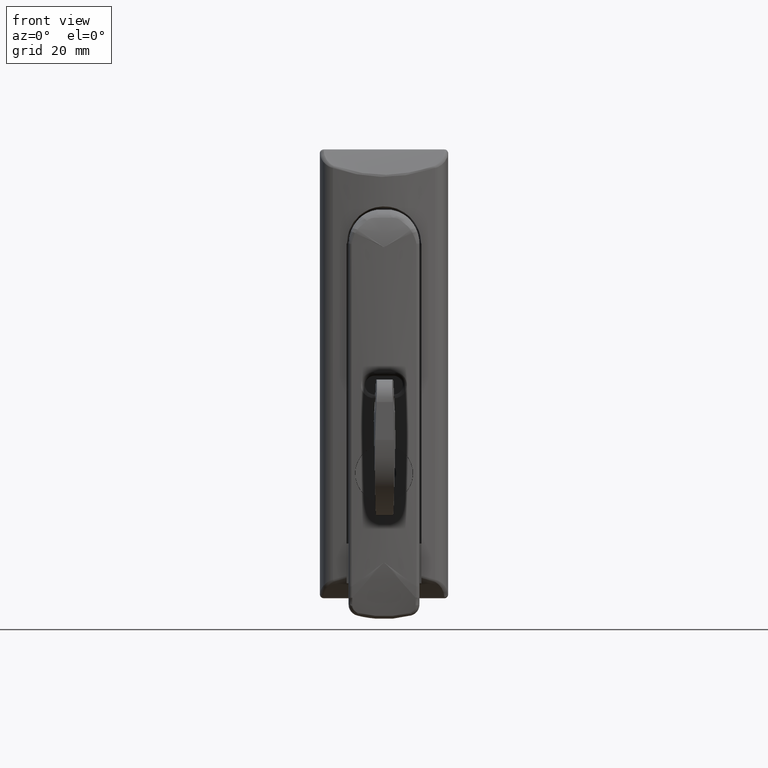
[diagram: clean part render]
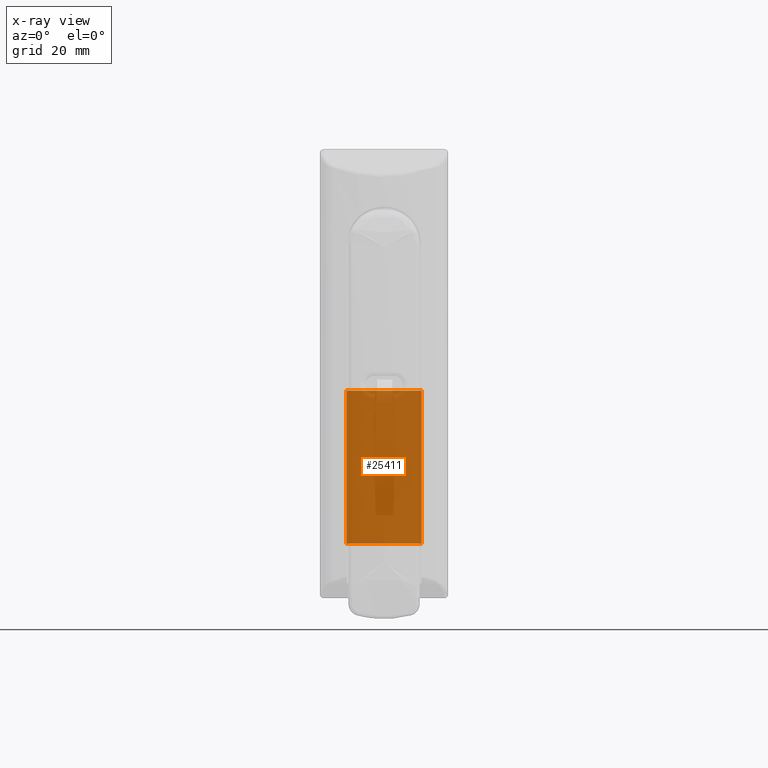
[diagram: x-ray — body ghosted, one internal face saturated and labeled with its STEP entity id]
A machine part, front view, then the same camera in x-ray: the body is ghosted and one INTERNAL B-rep face — a face not visible from any outside direction — is saturated and labeled: STEP entity #25411.
In plain terms, the highlighted face is a freeform B-spline surface patch.
Its self-contained STEP definition (entity closure, byte-faithful):
#25241=CARTESIAN_POINT('',(-9.900000000036210,28.999999999966050,-79.499999999994500));
#25242=VERTEX_POINT('',#25241);
#25248=CARTESIAN_POINT('',(-9.900000000036210,28.999999999966050,-38.999999999994500));
#25249=VERTEX_POINT('',#25248);
#25250=CARTESIAN_POINT('',(-9.900000000036210,28.999999999966050,-38.999999999994500));
#25251=CARTESIAN_POINT('',(-9.900000000036210,28.999999999966050,-79.499999999994500));
#25252=QUASI_UNIFORM_CURVE('',1,(#25250,#25251),.UNSPECIFIED.,.F.,.U.);
#25253=EDGE_CURVE('',#25249,#25242,#25252,.T.);
#25298=CARTESIAN_POINT('',(9.899999999963722,28.999999999966050,-38.999999999994500));
#25299=VERTEX_POINT('',#25298);
#25305=CARTESIAN_POINT('',(9.899999999963722,28.999999999966050,-79.499999999994500));
#25306=VERTEX_POINT('',#25305);
#25307=CARTESIAN_POINT('',(9.899999999963722,28.999999999966050,-38.999999999994500));
#25308=CARTESIAN_POINT('',(9.899999999963722,28.999999999966050,-79.499999999994500));
#25309=QUASI_UNIFORM_CURVE('',1,(#25307,#25308),.UNSPECIFIED.,.F.,.U.);
#25310=EDGE_CURVE('',#25299,#25306,#25309,.T.);
#25388=CARTESIAN_POINT('',(9.899999999963722,28.999999999966050,-79.499999999994500));
#25389=CARTESIAN_POINT('',(-9.900000000036210,28.999999999966050,-79.499999999994500));
#25390=QUASI_UNIFORM_CURVE('',1,(#25388,#25389),.UNSPECIFIED.,.F.,.U.);
#25391=EDGE_CURVE('',#25306,#25242,#25390,.T.);
#25396=CARTESIAN_POINT('',(10.889009961587480,28.999999999966050,-36.977025078491359));
#25397=CARTESIAN_POINT('',(10.889009961587480,28.999999999966050,-81.522976007792323));
#25398=CARTESIAN_POINT('',(-10.889010492737350,28.999999999966050,-36.977025078491359));
#25399=CARTESIAN_POINT('',(-10.889010492737350,28.999999999966050,-81.522976007792323));
#25400=B_SPLINE_SURFACE_WITH_KNOTS('',1,1,((#25396,#25398),(#25397,#25399)),.UNSPECIFIED.,.F.,.F.,.U.,(2,2),(2,2),(0.0,44.545950929300972),(0.0,21.778020454324832),.UNSPECIFIED.);
#25401=ORIENTED_EDGE('',*,*,#25253,.T.);
#25402=ORIENTED_EDGE('',*,*,#25391,.F.);
#25403=ORIENTED_EDGE('',*,*,#25310,.F.);
#25404=CARTESIAN_POINT('',(9.899999999963722,28.999999999966050,-38.999999999994500));
#25405=CARTESIAN_POINT('',(-9.900000000036210,28.999999999966050,-38.999999999994500));
#25406=QUASI_UNIFORM_CURVE('',1,(#25404,#25405),.UNSPECIFIED.,.F.,.U.);
#25407=EDGE_CURVE('',#25299,#25249,#25406,.T.);
#25408=ORIENTED_EDGE('',*,*,#25407,.T.);
#25409=EDGE_LOOP('',(#25401,#25402,#25403,#25408));
#25410=FACE_OUTER_BOUND('',#25409,.T.);
#25411=ADVANCED_FACE('',(#25410),#25400,.F.);